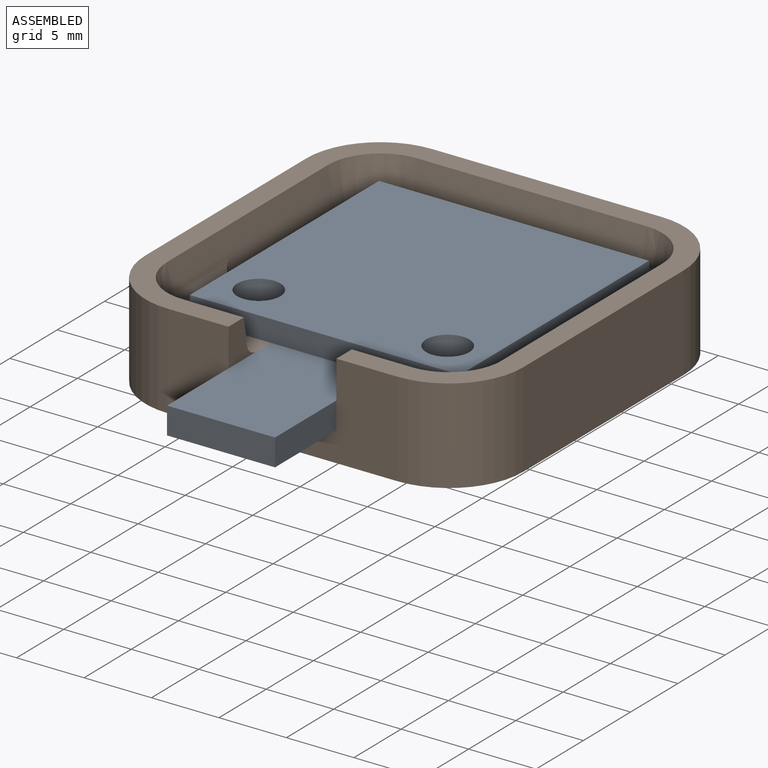
[diagram: assembled view]
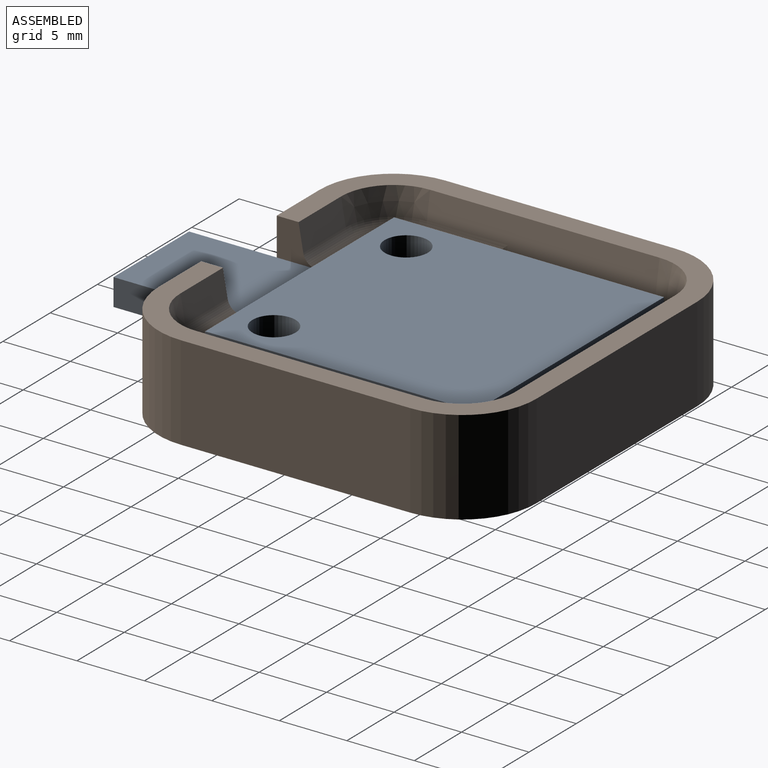
[diagram: assembled view, second angle]
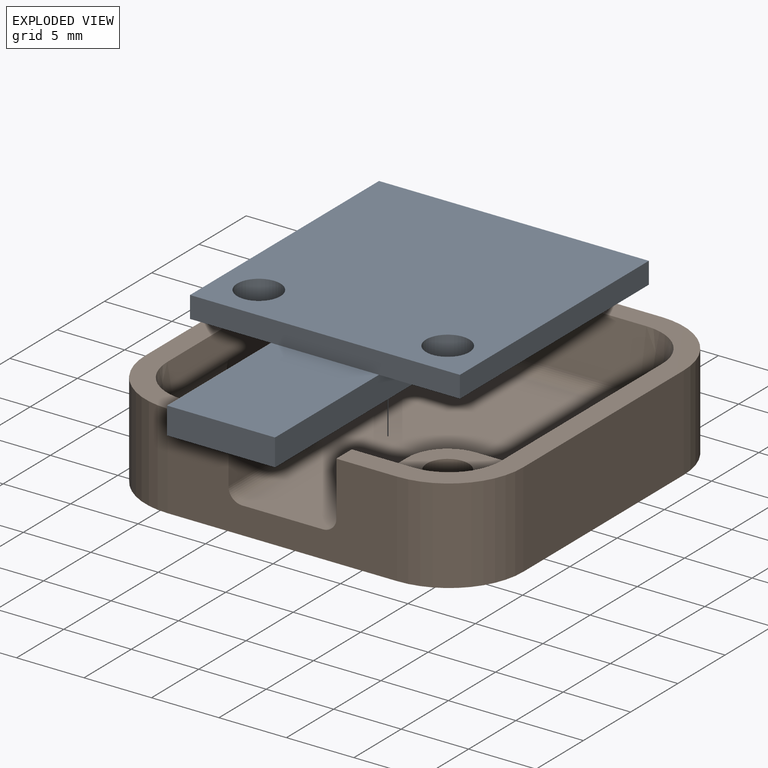
[diagram: exploded view]
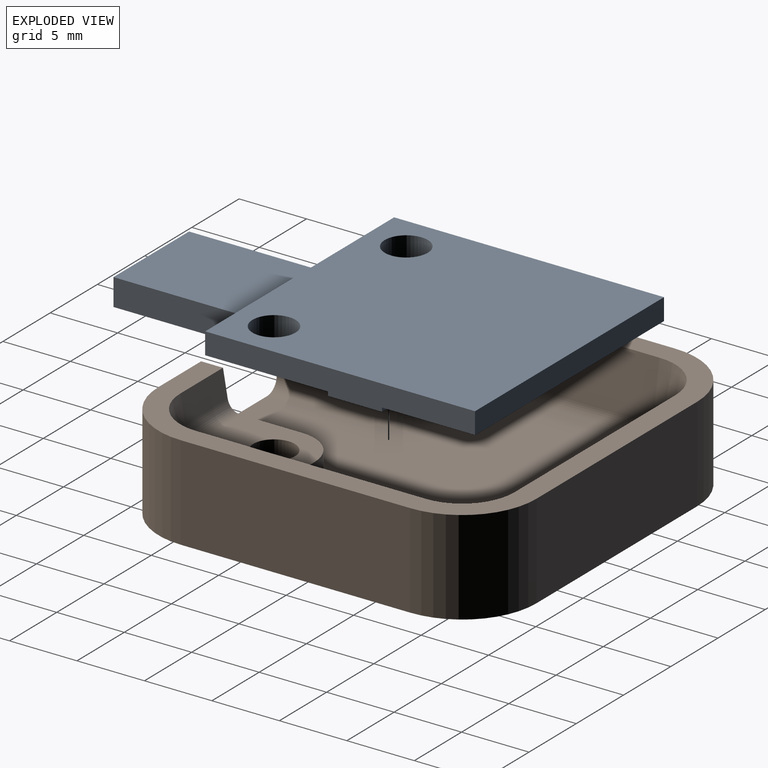
[diagram: exploded view, second angle]
ASSEMBLY  parts=2 mates=3
PART A: 30 faces, bbox 20x31x3.6 mm
  f0: cylinder r=1.6mm len=3.2mm, axis (0,0,-1), area 15.1mm2, adj f7,f29
  f1: cylinder r=1.6mm len=3.2mm, axis (0,0,-1), area 15.1mm2, adj f7,f26
  f2: plane 20x20mm, normal (0,0,1), area 250.3mm2, adj f3,f4,f5,f6,f8,f9,f10,f11
  f3: plane 20x1.6mm, normal (1,0,0), area 32mm2, adj f2,f4,f6,f7
  f4: plane 20x1.6mm, normal (0,1,0), area 32mm2, adj f2,f3,f5,f7
  f5: plane 20x1.6mm, normal (-1,0,0), area 32mm2, adj f2,f4,f6,f7
  f6: plane 20x1.6mm, normal (0,-1,0), area 32mm2, adj f2,f3,f5,f7,f18
  f7: plane 20x20mm, normal (0,0,-1), area 383.9mm2, adj f0,f1,f3,f4,f5,f6
  f8: plane 5x2mm, normal (1,0,0), area 10mm2, adj f2,f9,f11,f12
  f9: plane 11x2mm, normal (0,1,0), area 22mm2, adj f2,f8,f10,f12
  f10: plane 5x2mm, normal (-1,0,0), area 10mm2, adj f2,f9,f11,f12
  f11: plane 11x2mm, normal (0,-1,0), area 22mm2, adj f2,f8,f10,f12
  f12: plane 11x5mm, normal (0,0,1), area 47.9mm2, adj f8,f9,f10,f11,f24
  f13: plane 15x2mm, normal (1,0,0), area 30mm2, adj f2,f14,f16,f17,f18
  f14: plane 8x2mm, normal (0,1,0), area 16mm2, adj f2,f13,f15,f17
  f15: plane 15x2mm, normal (-1,0,0), area 30mm2, adj f2,f14,f16,f17,f18
  f16: plane 8x2mm, normal (0,-1,0), area 16mm2, adj f13,f15,f17,f18
  f17: plane 15x8mm, normal (0,0,1), area 120mm2, adj f13,f14,f15,f16
  f18: plane 11x8mm, normal (0,0,-1), area 88mm2, adj f6,f13,f15,f16
  f19: plane 4x2mm, normal (1,0,0), area 8mm2, adj f2,f20,f22,f23
  f20: plane 2x2mm, normal (0,1,0), area 4mm2, adj f2,f19,f21,f23
  f21: plane 4x2mm, normal (-1,0,0), area 8mm2, adj f2,f20,f22,f23
  f22: plane 2x2mm, normal (0,-1,0), area 4mm2, adj f2,f19,f21,f23
  f23: plane 4x2mm, normal (0,0,1), area 8mm2, adj f19,f20,f21,f22
  f24: cylinder r=1.5mm len=3mm, axis (0,0,1), area 18.8mm2, adj f12,f25
  f25: plane 3x3mm, normal (0,0,1), area 7.1mm2, adj f24
  f26: plane 5.9x5.9mm, normal (0,0,1), area 19.3mm2, adj f1,f27
  f27: cylinder r=2.95mm len=5.9mm, axis (0,0,1), area 1.9mm2, adj f2,f26
  f28: cylinder r=2.95mm len=5.9mm, axis (0,0,1), area 1.9mm2, adj f2,f29
  f29: plane 5.9x5.9mm, normal (0,0,1), area 19.3mm2, adj f0,f28
PART B: 51 faces, bbox 28x28x7 mm
  f0: plane 4.5x1.97mm, normal (0,0.98,0.17), area 9mm2, adj f1,f19,f27,f37
  f1: plane 28x28mm, normal (0,0,1), area 144.8mm2, adj f0,f2,f3,f4,f5,f6,f7,f8
  f2: plane 17x7mm, normal (0,-1,0), area 79.4mm2, adj f1,f10,f11,f12,f13,f22,f27,f31
  f3: plane 4.5x1.97mm, normal (0,0.98,0.17), area 9mm2, adj f1,f18,f22,f30
  f4: plane 17x4.17mm, normal (0.98,0,0.17), area 58.6mm2, adj f1,f17,f18,f34,f36,f41
  f5: plane 17x7mm, normal (1,0,0), area 119mm2, adj f1,f6,f11,f12
  f6: cylinder r=5.5mm len=7mm, axis (0,0,-1), area 60.5mm2, adj f1,f5,f7,f12
  f7: plane 17x7mm, normal (0,1,0), area 119mm2, adj f1,f6,f8,f12
  f8: cylinder r=5.5mm len=7mm, axis (0,0,-1), area 60.5mm2, adj f1,f7,f9,f12
  f9: plane 17x7mm, normal (-1,0,0), area 119mm2, adj f1,f8,f10,f12
  f10: cylinder r=5.5mm len=7mm, axis (0,0,-1), area 60.5mm2, adj f1,f2,f9,f12
  f11: cylinder r=5.5mm len=7mm, axis (0,0,-1), area 60.5mm2, adj f1,f2,f5,f12
  f12: plane 28x28mm, normal (0,0,-1), area 742.9mm2, adj f2,f5,f6,f7,f8,f9,f10,f11
  f13: plane 24.66x21.32mm, normal (0,0,1), area 354.5mm2, adj f2,f31,f33,f35,f40,f41,f43,f44
  f14: plane 17x4.17mm, normal (-0.98,0,0.17), area 58.6mm2, adj f1,f15,f19,f42,f45,f50
  f15: cone r=3mm half-angle=10deg, axis (0,0,1), area 23.4mm2, adj f1,f14,f16,f49
  f16: plane 17x4.17mm, normal (0,-0.98,0.17), area 72mm2, adj f1,f15,f17,f47
  f17: cone r=3mm half-angle=10deg, axis (0,0,1), area 23.4mm2, adj f1,f4,f16,f44
  f18: cone r=3mm half-angle=10deg, axis (0,0,1), area 11.7mm2, adj f1,f3,f4,f32
  f19: cone r=3mm half-angle=10deg, axis (0,0,1), area 11.7mm2, adj f0,f1,f14,f39
  f20: plane 7.56x7.05mm, normal (0,0,1), area 42.3mm2, adj f21,f22,f23,f29,f30,f32,f34,f36
  f21: plane 3.87x1.2mm, normal (0,1,0), area 4.5mm2, adj f20,f23,f35,f36
  f22: plane 7.5x4mm, normal (1,0,0), area 14.4mm2, adj f1,f2,f3,f20,f23,f30,f31
  f23: cylinder r=3mm len=3mm, axis (0,0,-1), area 5.7mm2, adj f20,f21,f22,f33
  f24: plane 7.56x7.05mm, normal (0,0,1), area 42.3mm2, adj f25,f26,f27,f28,f37,f39,f42,f45
  f25: plane 3.87x1.2mm, normal (0,1,0), area 4.5mm2, adj f24,f26,f45,f46
  f26: cylinder r=3mm len=3mm, axis (0,0,-1), area 5.7mm2, adj f24,f25,f27,f43
  f27: plane 7.5x4mm, normal (-1,0,0), area 14.4mm2, adj f0,f1,f2,f24,f26,f37,f40
  f28: cylinder r=1.55mm len=4.2mm, axis (0,0,1), area 40.9mm2, adj f12,f24
  f29: cylinder r=1.55mm len=4.2mm, axis (0,0,1), area 40.9mm2, adj f12,f20
  f30: cylinder r=1mm len=4.5mm, axis (-1,0,0), area 6.3mm2, adj f3,f20,f22,f32
  f31: cylinder r=1mm len=7.5mm, axis (0,1,0), area 11.8mm2, adj f2,f13,f22,f33
  f32: torus R=2.55mm, axis (0,0,1), area 6.9mm2, adj f18,f20,f30,f34
  f33: torus R=4mm, axis (0,0,1), area 8.3mm2, adj f13,f23,f31,f35
  f34: cylinder r=1mm len=6mm, axis (0,1,0), area 7.6mm2, adj f4,f20,f32,f36
  f35: cylinder r=1mm len=3.66mm, axis (-1,0,0), area 5.8mm2, adj f13,f21,f33,f38
  f36: cylinder r=1mm len=2.37mm, axis (-0.17,0,0.98), area 2.5mm2, adj f4,f20,f21,f34,f38
  f37: cylinder r=1mm len=4.5mm, axis (1,0,0), area 6.3mm2, adj f0,f24,f27,f39
  f38: sphere r=1mm, area 1.4mm2, adj f35,f36,f41
  f39: torus R=2.55mm, axis (0,0,1), area 6.9mm2, adj f19,f24,f37,f42
  f40: cylinder r=1mm len=7.5mm, axis (0,-1,0), area 11.8mm2, adj f2,f13,f27,f43
  f41: cylinder r=1mm len=11mm, axis (0,-1,0), area 15.4mm2, adj f4,f13,f38,f44
  f42: cylinder r=1mm len=6mm, axis (0,1,0), area 7.6mm2, adj f14,f24,f39,f45
  f43: torus R=4mm, axis (0,0,1), area 8.3mm2, adj f13,f26,f40,f46
  f44: torus R=2.16mm, axis (0,0,1), area 6mm2, adj f13,f17,f41,f47
  f45: cylinder r=1mm len=2.37mm, axis (-0.17,0,-0.98), area 2.5mm2, adj f14,f24,f25,f42,f48
  f46: cylinder r=1mm len=3.66mm, axis (-1,0,0), area 5.8mm2, adj f13,f25,f43,f48
  f47: cylinder r=1mm len=17mm, axis (-1,0,0), area 23.7mm2, adj f13,f16,f44,f49
  f48: sphere r=1mm, area 1.4mm2, adj f45,f46,f50
  f49: torus R=2.16mm, axis (0,0,1), area 6mm2, adj f13,f15,f47,f50
  f50: cylinder r=1mm len=11mm, axis (0,-1,0), area 15.4mm2, adj f13,f14,f48,f49
PLACE A rot(axis=(0,1,0),180deg) t=(0,5.5,5.8)mm
PLACE B at identity fixed
MATE planar A.f2 <-> B.f20  axis (0,0,-1) through (-0.19,1.99,4.2)mm
MATE cylindrical A.f0 <-> B.f26  axis (0,0,1) through (7,-6.5,5.05)mm
MATE cylindrical A.f1 <-> B.f23  axis (0,0,1) through (-7,-6.5,5.05)mm
